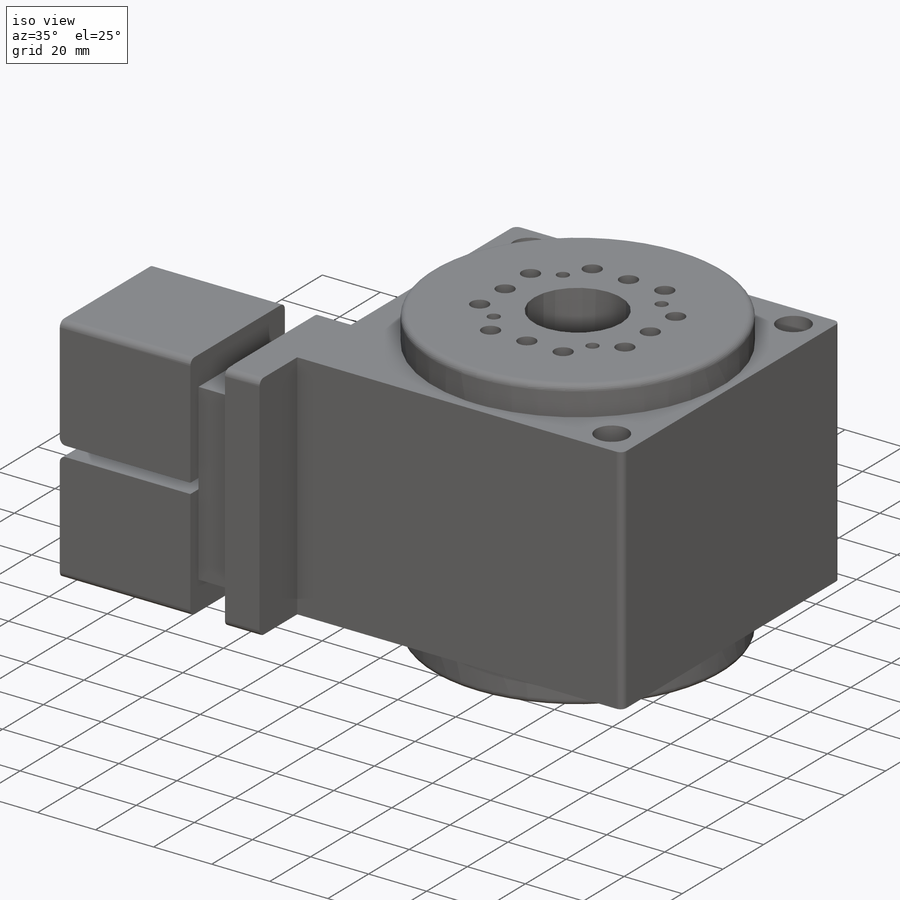
[diagram: iso view]
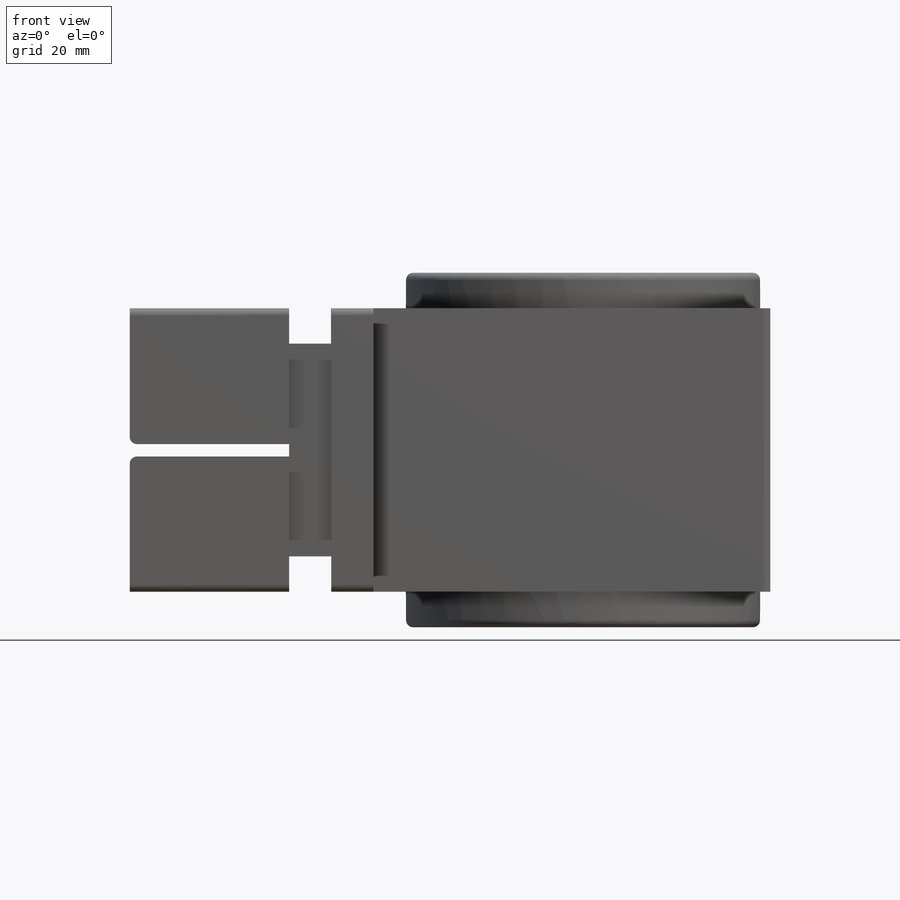
[diagram: front view]
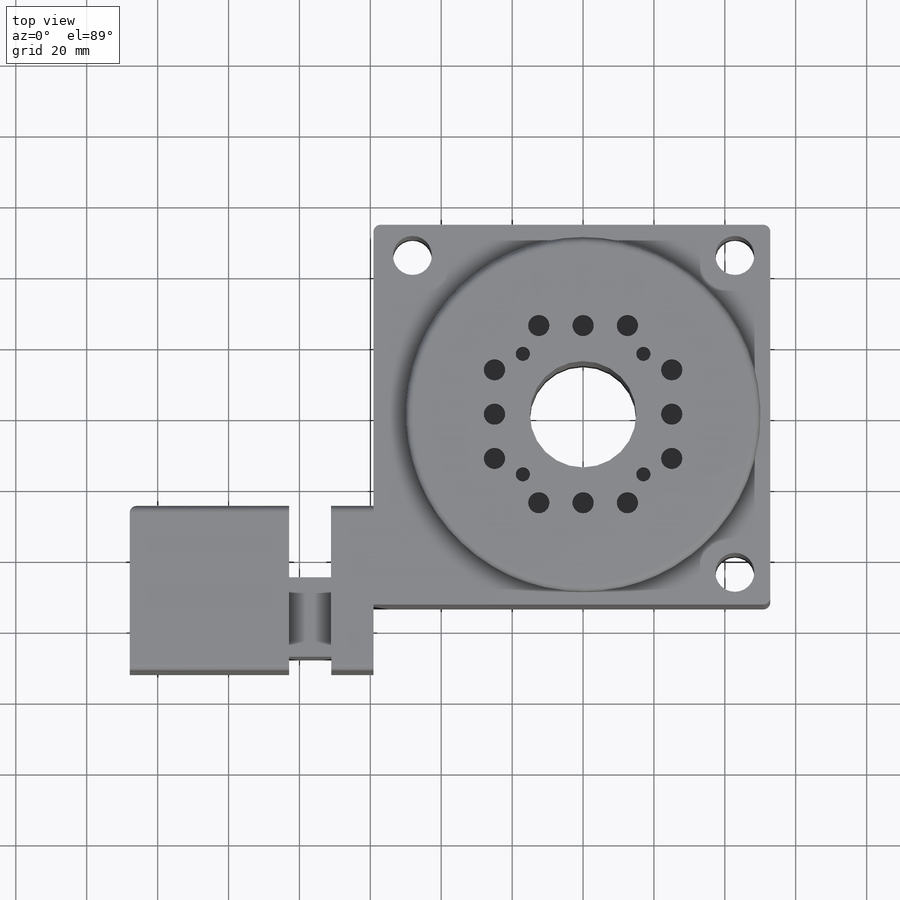
[diagram: top view]
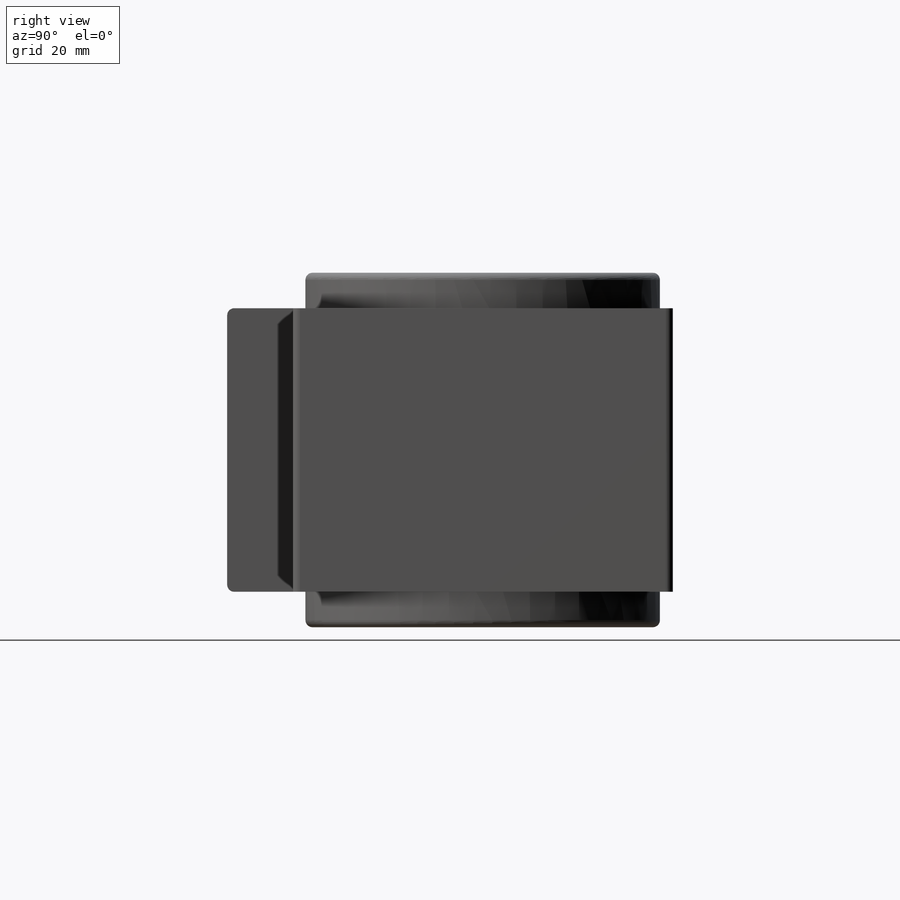
[diagram: right view]
SOLIDWORKS PART (.sldprt)
format: sldprt  version: not decoded by parser v0  size: 493,056 bytes
history: native  units: mm
features: sketch x14, cut_extrude x11, plane x3, extrude x3, fillet x3, pattern_circular x3, material x1 (+9 scaffold rows collapsed)
feature tree (47):
  scaffold x9  (default folders/planes/origin — collapsed)
  material  "材质 <未指定>"
  plane  "前视基准面"
  plane  "上视基准面"
  plane  "右视基准面"
  sketch  "草图1"  dims[D1=100.0mm]
  extrude  "凸台-拉伸1"  Depth=80mm
  fillet  "圆角1"  Radius=2mm
  sketch  "草图2"  dims[D1=11.0mm D2=11.0mm D3=11.0mm]
  cut_extrude  "切除-拉伸1"  Depth=80mm
  sketch  "草图3"
  cut_extrude  "切除-拉伸2"  Depth=4mm
  sketch  "草图4"
  cut_extrude  "切除-拉伸3"  Depth=10mm
  sketch  "草图5"
  cut_extrude  "切除-拉伸4"  Depth=10mm
  sketch  "草图6"
  cut_extrude  "切除-拉伸5"  Depth=20mm
  sketch  "草图7"
  cut_extrude  "切除-拉伸7"  Depth=50mm
  fillet  "圆角2"  Radius=2mm
  sketch  "草图8"
  extrude  "凸台-拉伸2"  Depth=90mm
  sketch  "草图9"
  extrude  "凸台-拉伸3"  Depth=100mm
  fillet  "圆角3"  Radius=2mm
  sketch  "草图10"  dims[D1=30.0mm]
  cut_extrude  "切除-拉伸8"  Depth=100mm
  sketch  "草图11"  dims[D2=6.0mm D4=6.0mm D5=6.0mm D1=12.5mm D3=25.0mm]
  cut_extrude  "切除-拉伸9"  Depth=10mm
  pattern_circular  "阵列(圆周)1"  Count=4 Angle=360deg
  sketch  "草图12"
  cut_extrude  "切除-拉伸10"  Depth=10mm
  pattern_circular  "阵列(圆周)2"  Count=4 Angle=360deg
  sketch  "草图13"  dims[D3=4.0mm D1=4.5mm D2=4.5mm]
  cut_extrude  "切除-拉伸11"  Depth=10mm
  pattern_circular  "阵列(圆周)3"  Count=4 Angle=360deg
  sketch  "草图14"
  cut_extrude  "切除-拉伸12"  Depth=10mm
decode coverage: 25 of 34 modeling features carry decoded parameters
note: suppression state not decoded; provenance and decode notes live in map.json
